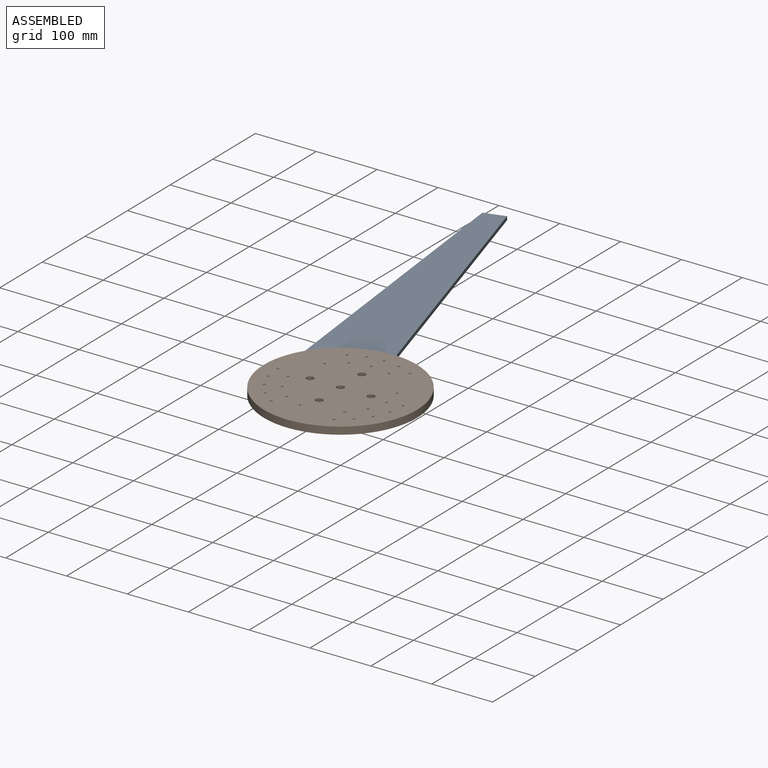
[diagram: assembled view]
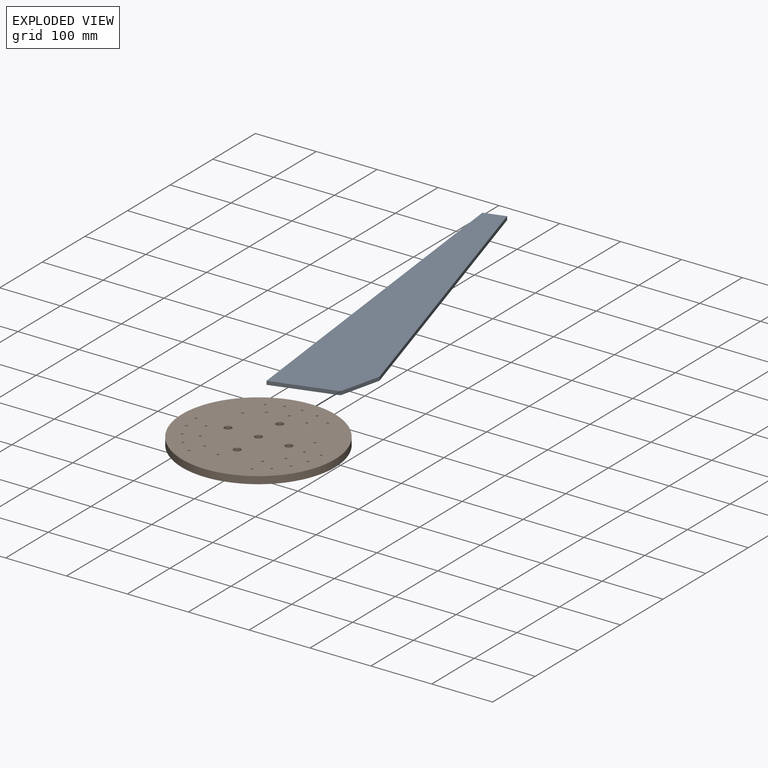
[diagram: exploded view]
GUIDED TOUR — FREECAD ASSEMBLY "Blade_Assembly_FrontTriangle"

This assembly has 2 components, labeled P0..P1 below (a component is one placed body or linked part; the same part can appear more than once), held together by 0 modeled joints plus 1 derived contact edge. A joint is a constraint between two components; its type names the relative motion it leaves free:
  CONTACT — a derived adjacency edge — the two components touch in the source model (clearance under 2% of the assembly's diagonal); it is measured from the geometry, not a modeled constraint.
Axis/direction vectors are unit vectors and 'through' points are millimeter coordinates, both in the assembly's world frame.

MATES
  1. CONTACT "contact_0_1": P0 <-> P1, contact direction (0.000, -1.000, 0.000) through (-100.51, -29.14, 0.00) mm (derived from contact, not a modeled constraint)

ASSEMBLY ORDER
  1. P1 — the base component [order verified]
  2. P0 [order verified]
(P0 verified with a relaxed clearance tolerance: the source model stores slight part interference there.)
Order-tag legend:
  [order verified] — this step's position reverses a verified removal order: the component was checked to insert without passing through the ones already placed.

Of the 2 components, 2 carry a construction recipe — the FreeCAD feature program (sketches with constraints, then the solid features that consume them) that regenerates the part from scratch, quoted from this document or from the linked companion document it references; the rest are supplied as boundary geometry only. The tour below walks the components in assembly order: each is shown spotlighted twice — in the assembled view, then in the exploded view, where a leader line traces a displaced component back to its assembled socket (components that stay in place when exploded have no leader line; saturated green if recipe-attached, orange if geometry-only; every other component desaturated gray) — followed by its recipe or geometry summary and the mates that hold it.
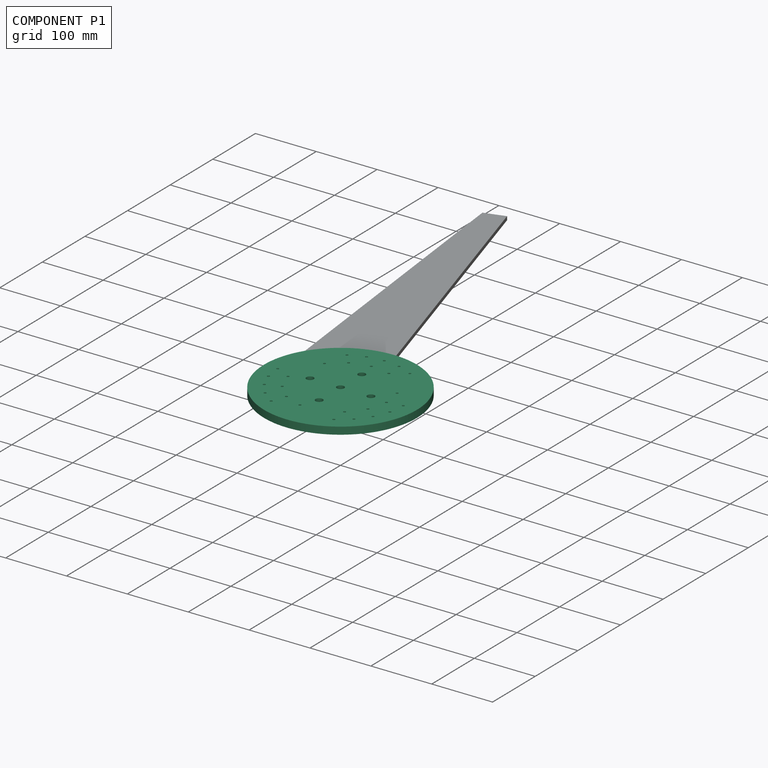
[diagram: component P1 — assembled]
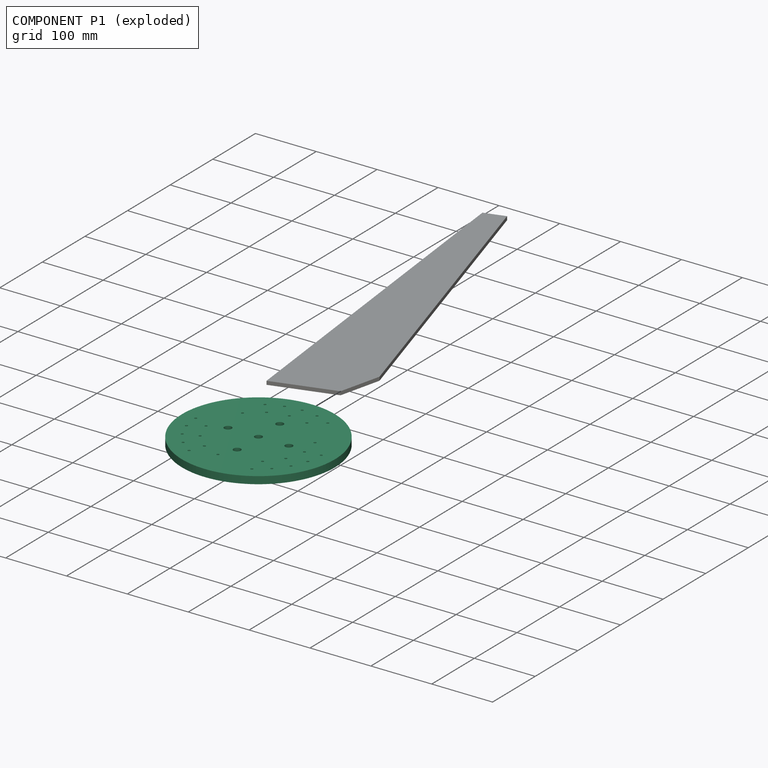
[diagram: component P1 — exploded]
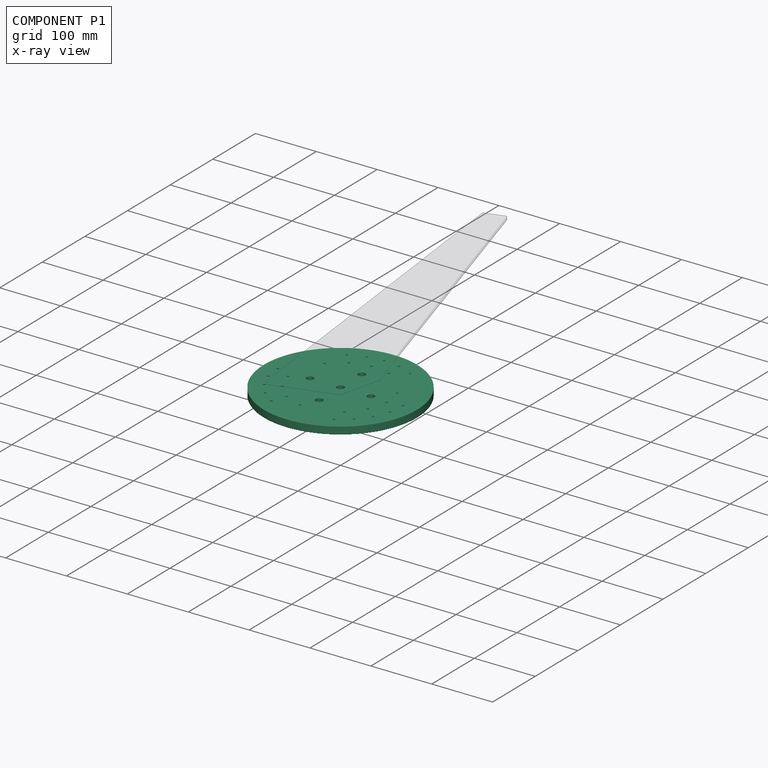
[diagram: component P1 — x-ray view]
COMPONENT P1 — same part as P0; its construction recipe is shown at P0.
Held by: resting contact with P0 (derived edge).
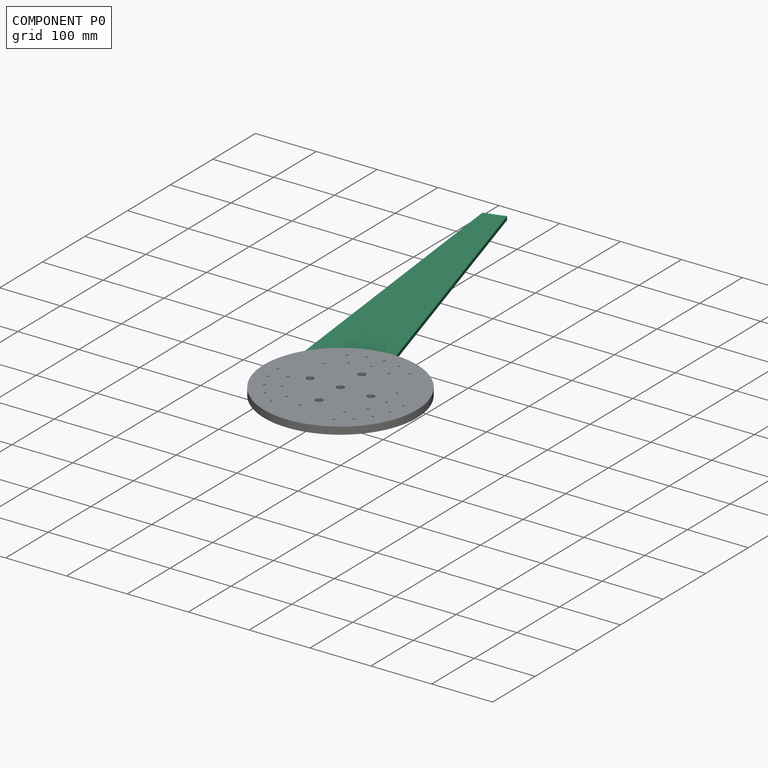
[diagram: component P0 — assembled]
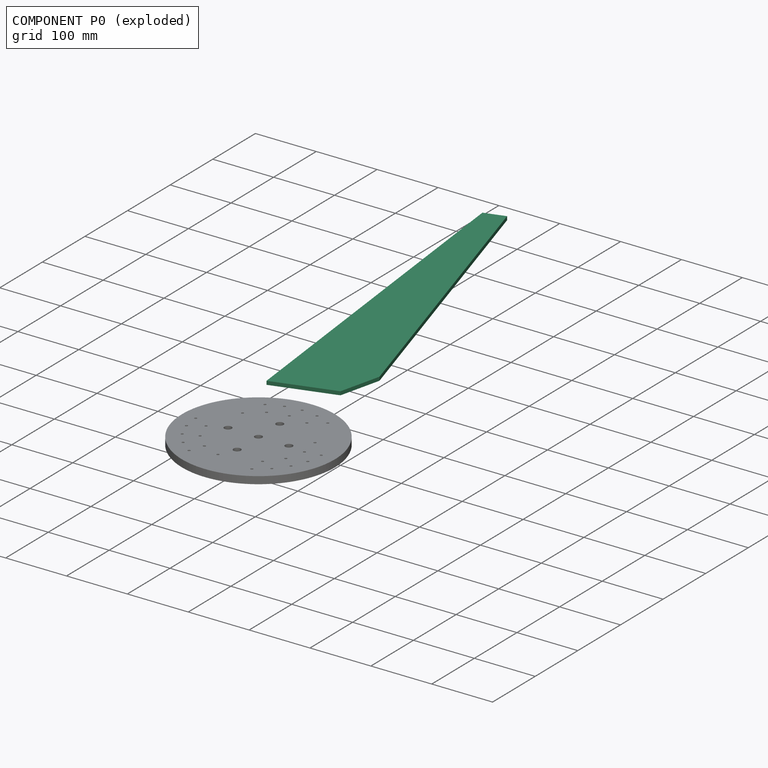
[diagram: component P0 — exploded]
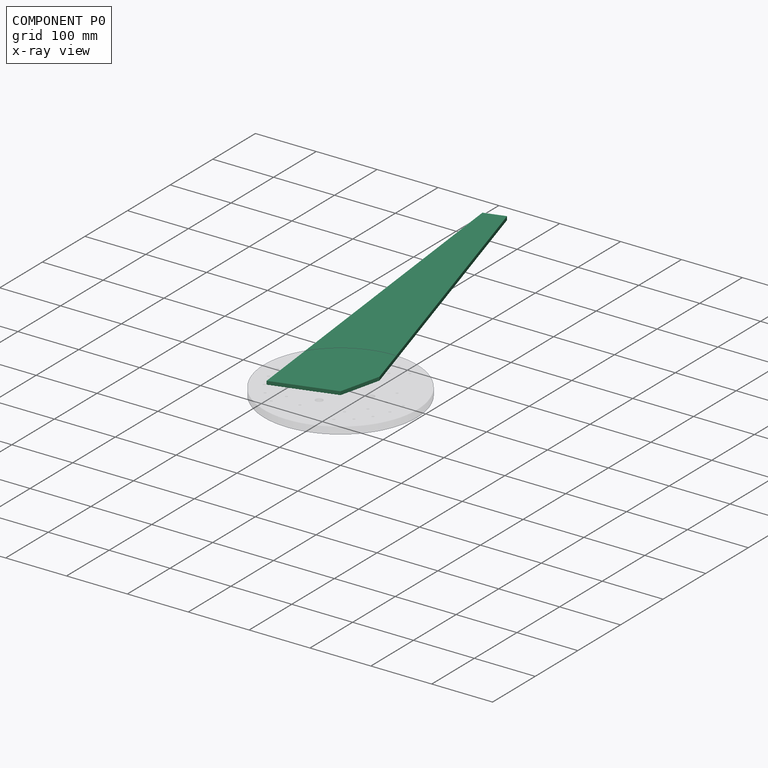
[diagram: component P0 — x-ray view]
COMPONENT P0 — recipe-attached ("Blade_Template", modeled in this document).
Held by: resting contact with P1 (derived edge).
Construction recipe (the document's own serialized feature program — sketch geometry with constraints, then the solid features built on it; lengths are millimeters unless a unit is written):

FEATURE [Sketcher::SketchObject] Sketch
  ArcFitTolerance = 0
  AttachmentSupport = -> [XY_Plane]
  FullyConstrained = true
  MakeInternals = false
  MapMode = 5
  expr: Constraints[10] = Spreadsheet.BladeAssemblyFrontTriangleSideLength
  sketch-geometry (4):
    g0: LineSegment StartX=0 StartY=173.205 StartZ=0 EndX=-150 EndY=-86.6025 EndZ=0
    g1: LineSegment StartX=-150 StartY=-86.6025 StartZ=0 EndX=150 EndY=-86.6025 EndZ=0
    g2: LineSegment StartX=150 StartY=-86.6025 StartZ=0 EndX=0 EndY=173.205 EndZ=0
    g3: Circle [constr] CenterX=0 CenterY=0 CenterZ=0 NormalX=0 NormalY=0 NormalZ=1 AngleXU=0 Radius=173.205
  constraints (11):
    c: Coincident(g0,g1)
    c: Coincident(g1,g2)
    c: Coincident(g2,g0)
    c: Equal(g0,g1)
    c: Equal(g0,g2)
    c: PointOnObject(g0,g3)
    c: PointOnObject(g1,g3)
    c: PointOnObject(g2,g3)
    c: Coincident(g3,g-1)
    c: PointOnObject(g2,g-2)
    c: Distance(g2) = 300
FEATURE [PartDesign::Pad] Pad
  Direction = (0,0,1)
  Length = 9
  Length2 = 10
  Profile = -> Sketch
  ReferenceAxis = -> Sketch [N_Axis]
  Suppressed = false
  Type = 0
  expr: Length = Spreadsheet.BladeAssemblyPlateThickness
FEATURE [Sketcher::SketchObject] Sketch001  label="InnerScrewHoleSketch"
  ArcFitTolerance = 0
  AttachmentOffset = pos=(0,0,9) rot=(0,0,1;0rad)
  AttachmentSupport = -> [XY_Plane]
  FullyConstrained = true
  MakeInternals = false
  MapMode = 5
  Placement = pos=(0,0,9) rot=(0,0,1;0rad)
  expr: .AttachmentOffset.Base.z = Spreadsheet.BladeAssemblyPlateThickness
  expr: Constraints[10] = Spreadsheet.TriangleCenterToVertexDistance
  expr: Constraints[12] = Spreadsheet.ScrewHoleRadius
  expr: Constraints[17] = Spreadsheet.InnerScrewLineDistanceFromCenter
  expr: Constraints[21] = Spreadsheet.FirstInnerScrewOffset
  expr: Constraints[23] = Spreadsheet.BladeTemplateTrailingEdgeAngle
  expr: Constraints[5] = Spreadsheet.BladeTemplateDim_W * 2
  expr: Constraints[6] = Spreadsheet.DistanceFromCenter
  sketch-geometry (9):
    g0: LineSegment [constr] StartX=0 StartY=0 StartZ=0 EndX=-71.9362 EndY=-21.2176 EndZ=0
    g1: LineSegment [constr] StartX=0 StartY=0 StartZ=0 EndX=22.9883 EndY=95.2656 EndZ=0
    g2: LineSegment [constr] StartX=22.9883 StartY=95.2656 StartZ=0 EndX=0 EndY=173.205 EndZ=0
    g3: LineSegment [constr] StartX=-71.9362 StartY=-21.2176 StartZ=0 EndX=-106.984 EndY=141.65 EndZ=0
    g4: LineSegment [constr] StartX=-106.984 StartY=141.65 StartZ=0 EndX=0 EndY=173.205 EndZ=0
    g5: LineSegment [constr] StartX=0 StartY=173.205 StartZ=0 EndX=0 EndY=0 EndZ=0
    g6: LineSegment [constr] StartX=-69.5846 StartY=-20.524 StartZ=0 EndX=14.291 EndY=124.753 EndZ=0
    g7: Circle CenterX=-52.8095 CenterY=8.53135 CenterZ=0 NormalX=0 NormalY=0 NormalZ=1 AngleXU=0 Radius=2
    g8: LineSegment [constr] StartX=0 StartY=0 StartZ=0 EndX=-43.3013 EndY=25 EndZ=0
  constraints (26):
    c: Coincident(g1,g0)
    c: Coincident(g2,g1)
    c: PointOnObject(g2,g-2)
    c: Coincident(g3,g0)
    c: Angle(g1,g0) = 2.0944
    c: Distance(g1) = 98
    c: Distance(g0) = 75
    c: Coincident(g4,g3)
    c: Coincident(g4,g2)
    c: Coincident(g5,g2)
    c: Distance(g5) = 173.205
    c: PointOnObject(g7,g6)
    c: Radius(g7) = 2
    c: PointOnObject(g8,g6)
    c: Perpendicular(g6,g8)
    c: Angle(g5,g8) = 1.0472
    c: Coincident(g0,g8)
    c: Distance(g8) = 50
    c: Coincident(g-1,g0)
    c: Coincident(g-1,g5)
    c: PointOnObject(g6,g2)
    c: Distance(g7,g6) = 33.5502
    c: Angle(g2,g1) = 2.61799
    c: Angle(g0,g3) = 1.49594
    c: Parallel(g0,g4)
    c: PointOnObject(g6,g0)
FEATURE [PartDesign::Pocket] Pocket  label="InnerScrewHolePocket"
  BaseFeature = -> Pad
  Direction = (0,0,-1)
  Length = 0
  Length2 = 1
  Profile = -> Sketch001
  ReferenceAxis = -> Sketch001 [N_Axis]
  Suppressed = true
  Type = 1
  expr: Suppressed = Spreadsheet.HideInnerScrews
FEATURE [PartDesign::Line] DatumLine
  AttacherType = Attacher::AttachEngineLine
  AttachmentOffset = pos=(0,9,0) rot=(0,1,0;1.0472rad)
  AttachmentSupport = -> [XY_Plane]
  Length = 20
  MapMode = 16
  Placement = pos=(0,0,9) rot=(0.186157,0.694747,0.694747;2.77349rad)
  ResizeMode = 0
  expr: .AttachmentOffset.Base.y = Spreadsheet.BladeAssemblyPlateThickness
FEATURE [Sketcher::SketchObject] Sketch002  label="OuterScrewHoleSketch"
  ArcFitTolerance = 0
  AttachmentOffset = pos=(0,0,9) rot=(0,0,1;0rad)
  AttachmentSupport = -> [XY_Plane]
  FullyConstrained = true
  MakeInternals = false
  MapMode = 5
  Placement = pos=(0,0,9) rot=(0,0,1;0rad)
  expr: .AttachmentOffset.Base.z = Spreadsheet.BladeAssemblyPlateThickness
  expr: Constraints[10] = Spreadsheet.TriangleCenterToVertexDistance
  expr: Constraints[15] = Spreadsheet.ScrewHoleRadius
  expr: Constraints[17] = Spreadsheet.OuterScrewLineDistanceFromCenter
  expr: Constraints[21] = Spreadsheet.FirstOuterScrewOffset
  expr: Constraints[23] = Spreadsheet.BladeTemplateTrailingEdgeAngle
  expr: Constraints[5] = Spreadsheet.BladeTemplateDim_W * 2
  expr: Constraints[6] = Spreadsheet.DistanceFromCenter
  sketch-geometry (9):
    g0: LineSegment [constr] StartX=0 StartY=0 StartZ=0 EndX=-71.9362 EndY=-21.2176 EndZ=0
    g1: LineSegment [constr] StartX=0 StartY=0 StartZ=0 EndX=22.9883 EndY=95.2656 EndZ=0
    g2: LineSegment [constr] StartX=22.9883 StartY=95.2656 StartZ=0 EndX=0 EndY=173.205 EndZ=0
    g3: LineSegment [constr] StartX=-71.9362 StartY=-21.2176 StartZ=0 EndX=-106.984 EndY=141.65 EndZ=0
    g4: LineSegment [constr] StartX=-106.984 StartY=141.65 StartZ=0 EndX=0 EndY=173.205 EndZ=0
    g5: LineSegment [constr] StartX=0 StartY=173.205 StartZ=0 EndX=0 EndY=0 EndZ=0
    g6: LineSegment [constr] StartX=0 StartY=0 StartZ=0 EndX=-60.6123 EndY=33.5979 EndZ=0
    g7: LineSegment [constr] StartX=-94.7224 StartY=-27.9384 StartZ=0 EndX=5.82541 EndY=153.455 EndZ=0
    g8: Circle CenterX=-73.6164 CenterY=10.1378 CenterZ=0 NormalX=0 NormalY=0 NormalZ=1 AngleXU=0 Radius=2
  constraints (26):
    c: Coincident(g1,g0)
    c: Coincident(g2,g1)
    c: PointOnObject(g2,g-2)
    c: Coincident(g3,g0)
    c: Angle(g1,g0) = 2.0944
    c: Distance(g1) = 98
    c: Distance(g0) = 75
    c: Coincident(g4,g3)
    c: Coincident(g4,g2)
    c: Coincident(g5,g2)
    c: Distance(g5) = 173.205
    c: Coincident(g5,g6)
    c: Angle(g-2,g6) = 1.06465
    c: Perpendicular(g6,g7)
    c: PointOnObject(g8,g7)
    c: Radius(g8) = 2
    c: PointOnObject(g6,g7)
    c: Distance(g6) = 69.3013
    c: Coincident(g5,g0)
    c: Coincident(g5,g-1)
    c: PointOnObject(g7,g2)
    c: Distance(g8,g7) = 43.5347
    c: Angle(g2,g1) = 2.61799
    c: Angle(g0,g3) = 1.49594
    c: Parallel(g4,g0)
    c: PointOnObject(g7,g0)
FEATURE [PartDesign::Pocket] Pocket001  label="OuterScrewHolePocket"
  BaseFeature = -> Pocket
  Direction = (0,0,-1)
  Length = 5
  Length2 = 5
  Profile = -> Sketch002
  ReferenceAxis = -> Sketch002 [N_Axis]
  Suppressed = false
  Type = 1
FEATURE [PartDesign::LinearPattern] LinearPattern
  Direction = -> DatumLine
  Length = 130.294
  Mode = 0
  Occurrences = 5
  Offset = 32.5735
  Suppressed = false
  TransformMode = 0
  expr: Length = Spreadsheet.OuterScrewLineLength
  expr: Occurrences = Spreadsheet.NumberOfOuterScrews
FEATURE [PartDesign::PolarPattern] PolarPattern
  Angle = 360
  Axis = -> Sketch002 [N_Axis]
  Mode = 0
  Occurrences = 3
  Offset = 120
  Suppressed = false
  TransformMode = 0
FEATURE [PartDesign::MultiTransform] MultiTransform  label="OuterScrewHoleMultiTransform"
  BaseFeature = -> Pocket001
  Originals = -> [Pocket001]
  Suppressed = false
  TransformMode = 0
  Transformations = -> [LinearPattern,PolarPattern]
FEATURE [PartDesign::LinearPattern] LinearPattern001
  Direction = -> DatumLine
  Length = 100.651
  Mode = 0
  Occurrences = 4
  Offset = 33.5502
  Suppressed = false
  TransformMode = 0
  expr: Length = Spreadsheet.InnerScrewLineLength
  expr: Occurrences = Spreadsheet.NumberOfInnerScrews
FEATURE [PartDesign::PolarPattern] PolarPattern001
  Angle = 360
  Axis = -> Sketch001 [N_Axis]
  Mode = 0
  Occurrences = 3
  Offset = 120
  Suppressed = false
  TransformMode = 0
FEATURE [PartDesign::MultiTransform] MultiTransform001  label="InnerHoleScrewHoleMultiTransform"
  BaseFeature = -> MultiTransform
  Originals = -> [Pocket]
  Suppressed = true
  TransformMode = 0
  Transformations = -> [LinearPattern001,PolarPattern001]
  expr: Suppressed = Spreadsheet.HideInnerScrews
FEATURE [PartDesign::Body] Body  label="Blade_Assembly_FrontTriangle"
  AllowCompound = false
  Group = -> [Sketch,Pad,Sketch001,Pocket,DatumLine,Sketch002,Pocket001,MultiTransform,LinearPattern,PolarPattern,MultiTransform001,LinearPattern001,PolarPattern001]
  Openafpm_Flat = true
  Origin = -> Origin
  Placement = pos=(0,0,0) rot=(0,0,-1;0.610865rad)
  Tip = -> MultiTransform001
  expr: .Placement.Rotation.Angle = Spreadsheet.AngleToAlignWithBackDisk
PROVENANCE & LICENSES
Assembly and component geometry: a FreeCAD (.FCStd) document from a public repository crawl; components, placements and joints were extracted with FreeCAD and each solid tessellated.
Construction recipes: the document's own serialized feature recipes (and, for linked parts, the recipes of companion documents from the same project).
License: lgpl-3.0.
Joints: native FreeCAD joints and A2plus constraints are mapped to standard mate types; edges marked 'derived from contact' connect touching components and are measured from the geometry, not modeled.
Verification: 2 of this assembly's 2 components carry a construction recipe (2 from this document itself); the rest are geometry-only. Every component's tessellation passed the extraction mesh gates (mesh-volume checksum against the B-rep where available, bounding-box inflation <= 2%).
Renders: orthographic iso camera (az 35 / el 25); the floor grid conveys scale (grid pitch printed in each image; no ruler). In the exploded view each component is displaced by its stored offset vector: the offsets alone carry the explosion direction (mate normal/axis signs are not orientation cues and do not encode it), and separation distances are assigned per mate-chain, not proportionally to assembly-order depth.
